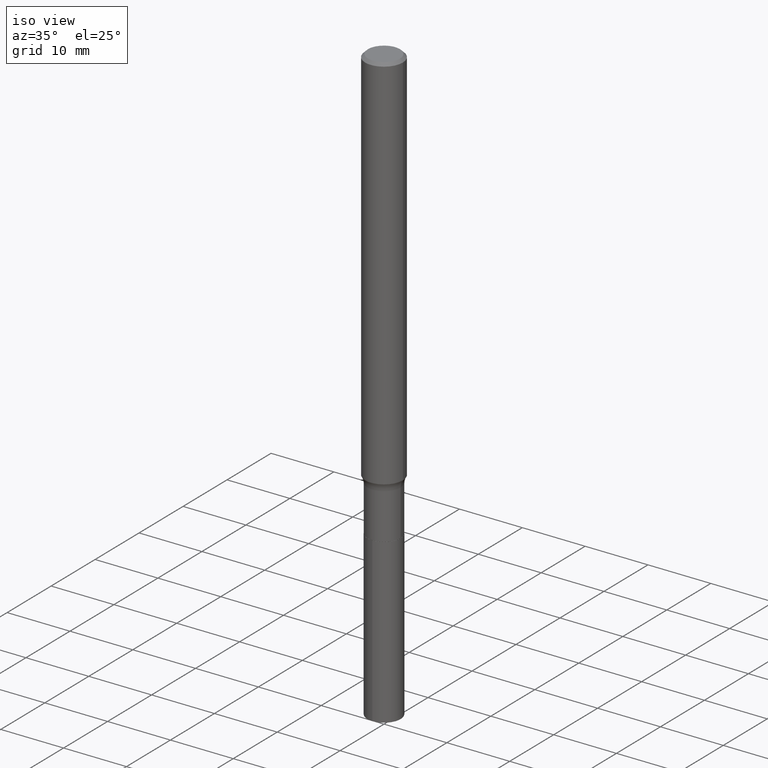
[diagram: clean part render]
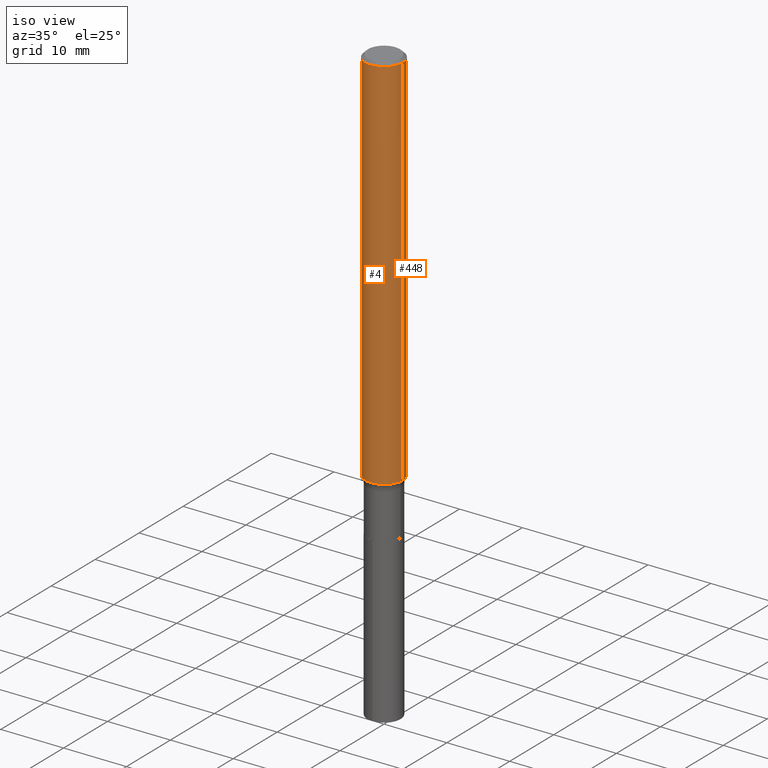
[diagram: same view with one multi-face feature highlighted, each face labeled with its STEP entity id]
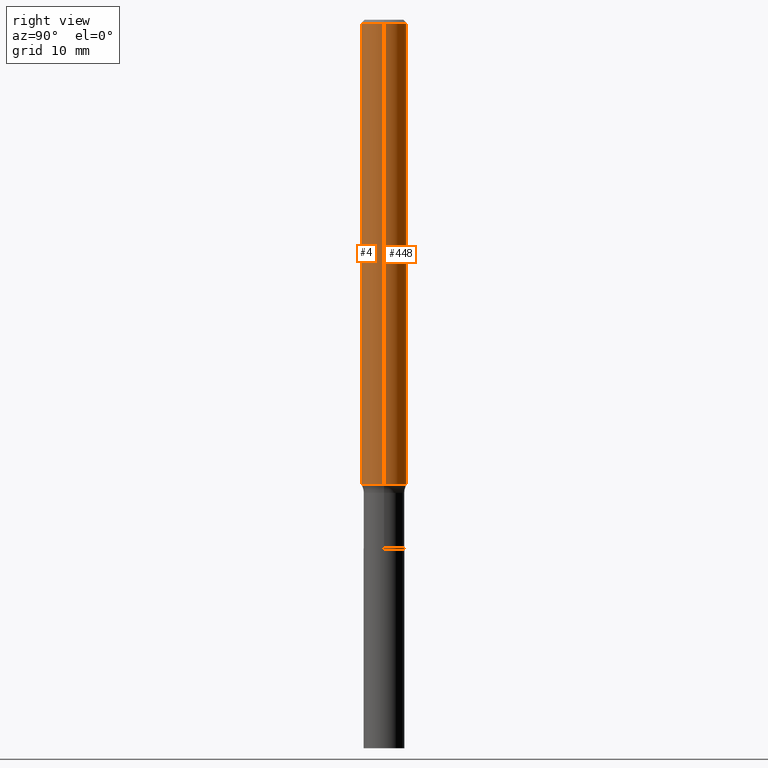
[diagram: same view with one multi-face feature highlighted, each face labeled with its STEP entity id]
A machine part, iso view. The highlighted faces form ONE feature: a constant-radius fillet chain: 2 tangent blend faces with common blend radius 2.9997 mm. The faces share edges in the B-rep.
A second angle (right view) of the same feature is appended — it is thin or edge-on in the first view.
Their STEP definitions:
[1] entity #4 (Cylinder):
#1 = CARTESIAN_POINT ( 'NONE',  ( 5.830435198608251286E-29, -8.324316238174008112E-15, -2.384178928744369763 ) ) ;
#4 = ADVANCED_FACE ( 'NONE', ( #217 ), #32, .T. ) ;
#16 = AXIS2_PLACEMENT_3D ( 'NONE', #1, #112, #143 ) ;
#25 = ORIENTED_EDGE ( 'NONE', *, *, #255, .F. ) ;
#32 = CYLINDRICAL_SURFACE ( 'NONE', #383, 0.1181000000000001354 ) ;
#38 = ORIENTED_EDGE ( 'NONE', *, *, #40, .T. ) ;
#40 = EDGE_CURVE ( 'NONE', #196, #147, #109, .T. ) ;
#44 = CARTESIAN_POINT ( 'NONE',  ( -0.1181000000000001354, 8.391509709326792818E-16, -5.809262341591050090E-30 ) ) ;
#79 = CARTESIAN_POINT ( 'NONE',  ( -0.1181000000000002742, -7.485165267241327548E-15, -2.384178928744369763 ) ) ;
#103 = CARTESIAN_POINT ( 'NONE',  ( 0.000000000000000000, 0.000000000000000000, 0.000000000000000000 ) ) ;
#109 = CIRCLE ( 'NONE', #16, 0.1181000000000002881 ) ;
#112 = DIRECTION ( 'NONE',  ( -2.445468806185136597E-29, 3.491481338843145583E-15, 1.000000000000000000 ) ) ;
#119 = DIRECTION ( 'NONE',  ( -2.445468806185136597E-29, 3.491481338843145583E-15, 1.000000000000000000 ) ) ;
#128 = DIRECTION ( 'NONE',  ( -2.445468806185136877E-29, 3.491481338843145188E-15, 1.000000000000000000 ) ) ;
#132 = VERTEX_POINT ( 'NONE', #405 ) ;
#143 = DIRECTION ( 'NONE',  ( 1.000000000000000000, -6.982962677686272233E-15, 0.000000000000000000 ) ) ;
#147 = VERTEX_POINT ( 'NONE', #295 ) ;
#155 = EDGE_CURVE ( 'NONE', #340, #132, #396, .T. ) ;
#159 = CARTESIAN_POINT ( 'NONE',  ( 4.332147990156996744E-31, -6.185159191760671627E-17, -0.01771500000000011260 ) ) ;
#165 = VECTOR ( 'NONE', #128, 39.37007874015748143 ) ;
#173 = ORIENTED_EDGE ( 'NONE', *, *, #267, .T. ) ;
#196 = VERTEX_POINT ( 'NONE', #79 ) ;
#217 = FACE_OUTER_BOUND ( 'NONE', #455, .T. ) ;
#221 = ORIENTED_EDGE ( 'NONE', *, *, #155, .F. ) ;
#242 = CARTESIAN_POINT ( 'NONE',  ( -0.1180999999999999966, -3.353932944113126197E-15, -0.01771500000000011260 ) ) ;
#255 = EDGE_CURVE ( 'NONE', #196, #340, #449, .T. ) ;
#267 = EDGE_CURVE ( 'NONE', #147, #132, #350, .T. ) ;
#286 = DIRECTION ( 'NONE',  ( -2.445468806185136597E-29, 3.491481338843145583E-15, 1.000000000000000000 ) ) ;
#294 = DIRECTION ( 'NONE',  ( -2.445468806185136877E-29, 3.491481338843145188E-15, 1.000000000000000000 ) ) ;
#295 = CARTESIAN_POINT ( 'NONE',  ( 0.1181000000000002742, -9.149004130408757952E-15, -2.384178928744369763 ) ) ;
#310 = AXIS2_PLACEMENT_3D ( 'NONE', #159, #119, #410 ) ;
#340 = VERTEX_POINT ( 'NONE', #242 ) ;
#350 = LINE ( 'NONE', #385, #165 ) ;
#383 = AXIS2_PLACEMENT_3D ( 'NONE', #103, #286, #433 ) ;
#385 = CARTESIAN_POINT ( 'NONE',  ( 0.1181000000000001354, -8.246878922347490515E-16, 5.758764772215007447E-30 ) ) ;
#396 = CIRCLE ( 'NONE', #310, 0.1180999999999999966 ) ;
#405 = CARTESIAN_POINT ( 'NONE',  ( 0.1180999999999999966, -8.865394841523547570E-16, -0.01771500000000011260 ) ) ;
#410 = DIRECTION ( 'NONE',  ( 1.000000000000000000, -6.982962677686266711E-15, 0.000000000000000000 ) ) ;
#433 = DIRECTION ( 'NONE',  ( 1.000000000000000000, -6.982962677686266711E-15, 4.876176775795936353E-29 ) ) ;
#436 = VECTOR ( 'NONE', #294, 39.37007874015748143 ) ;
#449 = LINE ( 'NONE', #44, #436 ) ;
#455 = EDGE_LOOP ( 'NONE', ( #25, #38, #173, #221 ) ) ;
[2] entity #448 (Cylinder):
#14 = CIRCLE ( 'NONE', #347, 0.1180999999999999966 ) ;
#21 = AXIS2_PLACEMENT_3D ( 'NONE', #325, #362, #178 ) ;
#35 = CIRCLE ( 'NONE', #447, 0.1181000000000002881 ) ;
#44 = CARTESIAN_POINT ( 'NONE',  ( -0.1181000000000001354, 8.391509709326792818E-16, -5.809262341591050090E-30 ) ) ;
#63 = ORIENTED_EDGE ( 'NONE', *, *, #255, .T. ) ;
#79 = CARTESIAN_POINT ( 'NONE',  ( -0.1181000000000002742, -7.485165267241327548E-15, -2.384178928744369763 ) ) ;
#92 = DIRECTION ( 'NONE',  ( -2.445468806185136597E-29, 3.491481338843145583E-15, 1.000000000000000000 ) ) ;
#108 = ORIENTED_EDGE ( 'NONE', *, *, #267, .F. ) ;
#128 = DIRECTION ( 'NONE',  ( -2.445468806185136877E-29, 3.491481338843145188E-15, 1.000000000000000000 ) ) ;
#132 = VERTEX_POINT ( 'NONE', #405 ) ;
#147 = VERTEX_POINT ( 'NONE', #295 ) ;
#165 = VECTOR ( 'NONE', #128, 39.37007874015748143 ) ;
#170 = DIRECTION ( 'NONE',  ( 1.000000000000000000, -6.982962677686266711E-15, 0.000000000000000000 ) ) ;
#178 = DIRECTION ( 'NONE',  ( 1.000000000000000000, -6.982962677686266711E-15, 4.876176775795936353E-29 ) ) ;
#183 = FACE_OUTER_BOUND ( 'NONE', #312, .T. ) ;
#196 = VERTEX_POINT ( 'NONE', #79 ) ;
#242 = CARTESIAN_POINT ( 'NONE',  ( -0.1180999999999999966, -3.353932944113126197E-15, -0.01771500000000011260 ) ) ;
#255 = EDGE_CURVE ( 'NONE', #196, #340, #449, .T. ) ;
#267 = EDGE_CURVE ( 'NONE', #147, #132, #350, .T. ) ;
#272 = DIRECTION ( 'NONE',  ( 1.000000000000000000, -6.982962677686272233E-15, 0.000000000000000000 ) ) ;
#273 = CARTESIAN_POINT ( 'NONE',  ( 5.830435198608251286E-29, -8.324316238174008112E-15, -2.384178928744369763 ) ) ;
#294 = DIRECTION ( 'NONE',  ( -2.445468806185136877E-29, 3.491481338843145188E-15, 1.000000000000000000 ) ) ;
#295 = CARTESIAN_POINT ( 'NONE',  ( 0.1181000000000002742, -9.149004130408757952E-15, -2.384178928744369763 ) ) ;
#308 = CARTESIAN_POINT ( 'NONE',  ( 4.332147990156996744E-31, -6.185159191760671627E-17, -0.01771500000000011260 ) ) ;
#312 = EDGE_LOOP ( 'NONE', ( #376, #63, #437, #108 ) ) ;
#323 = EDGE_CURVE ( 'NONE', #147, #196, #35, .T. ) ;
#325 = CARTESIAN_POINT ( 'NONE',  ( 0.000000000000000000, 0.000000000000000000, 0.000000000000000000 ) ) ;
#340 = VERTEX_POINT ( 'NONE', #242 ) ;
#347 = AXIS2_PLACEMENT_3D ( 'NONE', #308, #92, #170 ) ;
#350 = LINE ( 'NONE', #385, #165 ) ;
#362 = DIRECTION ( 'NONE',  ( -2.445468806185136597E-29, 3.491481338843145583E-15, 1.000000000000000000 ) ) ;
#376 = ORIENTED_EDGE ( 'NONE', *, *, #323, .T. ) ;
#378 = EDGE_CURVE ( 'NONE', #132, #340, #14, .T. ) ;
#385 = CARTESIAN_POINT ( 'NONE',  ( 0.1181000000000001354, -8.246878922347490515E-16, 5.758764772215007447E-30 ) ) ;
#405 = CARTESIAN_POINT ( 'NONE',  ( 0.1180999999999999966, -8.865394841523547570E-16, -0.01771500000000011260 ) ) ;
#417 = DIRECTION ( 'NONE',  ( -2.445468806185136597E-29, 3.491481338843145583E-15, 1.000000000000000000 ) ) ;
#428 = CYLINDRICAL_SURFACE ( 'NONE', #21, 0.1181000000000001354 ) ;
#436 = VECTOR ( 'NONE', #294, 39.37007874015748143 ) ;
#437 = ORIENTED_EDGE ( 'NONE', *, *, #378, .F. ) ;
#447 = AXIS2_PLACEMENT_3D ( 'NONE', #273, #417, #272 ) ;
#448 = ADVANCED_FACE ( 'NONE', ( #183 ), #428, .T. ) ;
#449 = LINE ( 'NONE', #44, #436 ) ;